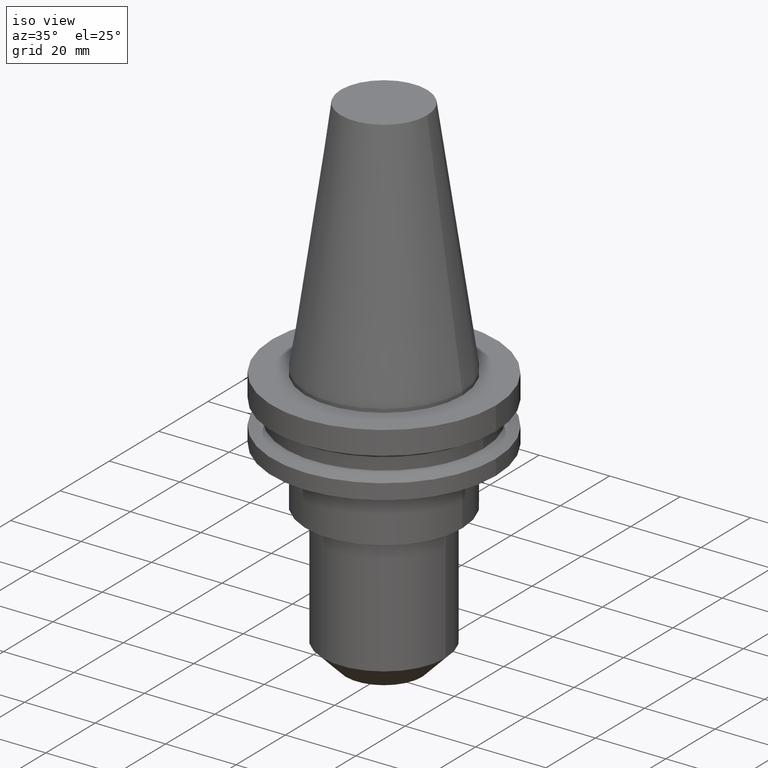
[diagram: clean part render]
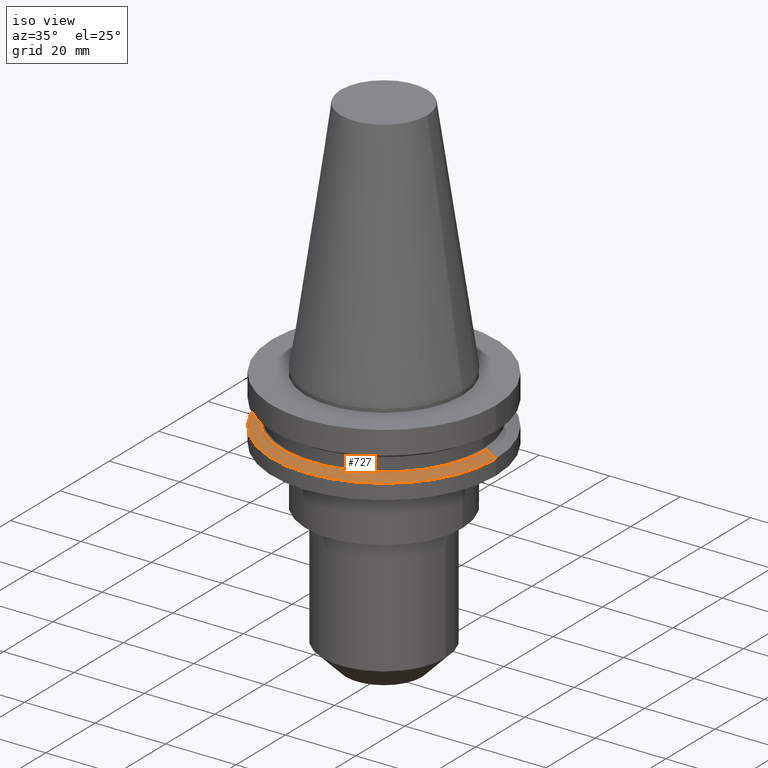
[diagram: same view with one face highlighted and labeled with its STEP entity id]
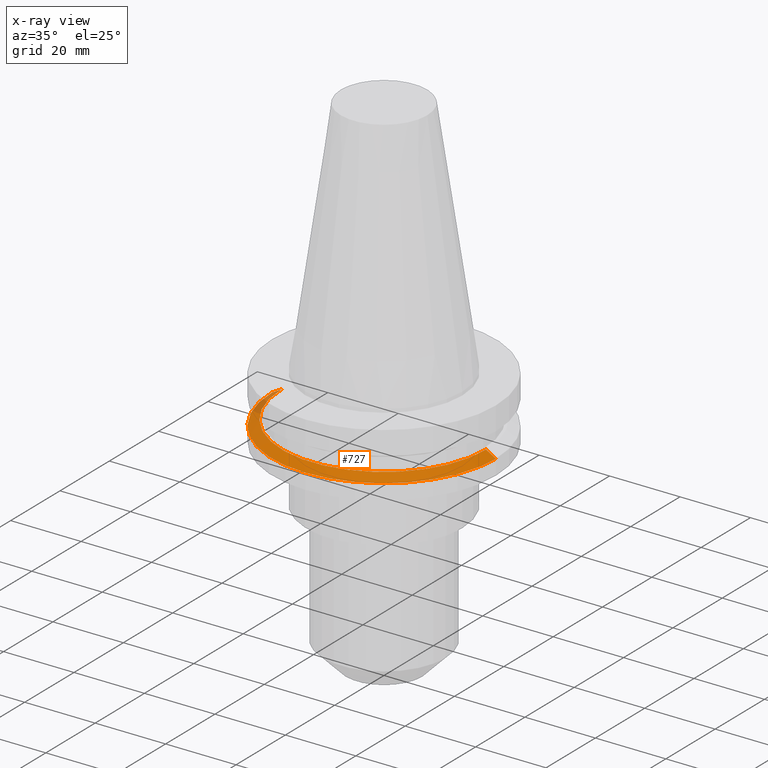
[diagram: x-ray of the same camera — body ghosted, the highlighted face saturated]
A machine part, iso view. The second image highlights one B-rep face of the part: STEP entity #727.
The next image is the same camera in x-ray: the body ghosted, the highlighted face saturated — about 4% of this face is hidden behind the body in this view.
In plain terms, the highlighted conical surface has half-angle 60 deg.
Its self-contained STEP definition (entity closure, byte-faithful):
#16 = VERTEX_POINT ( 'NONE', #205 ) ;
#30 = CONICAL_SURFACE ( 'NONE', #266, 31.75000000000000000, 1.047197551196597853 ) ;
#47 = CARTESIAN_POINT ( 'NONE',  ( 0.000000000000000000, 0.000000000000000000, -13.05499999999999794 ) ) ;
#52 = AXIS2_PLACEMENT_3D ( 'NONE', #574, #181, #242 ) ;
#89 = LINE ( 'NONE', #623, #422 ) ;
#104 = AXIS2_PLACEMENT_3D ( 'NONE', #47, #572, #173 ) ;
#105 = ORIENTED_EDGE ( 'NONE', *, *, #656, .T. ) ;
#173 = DIRECTION ( 'NONE',  ( 1.000000000000000000, 0.000000000000000000, 0.000000000000000000 ) ) ;
#178 = LINE ( 'NONE', #708, #428 ) ;
#181 = DIRECTION ( 'NONE',  ( -0.000000000000000000, -0.000000000000000000, 1.000000000000000000 ) ) ;
#182 = VERTEX_POINT ( 'NONE', #684 ) ;
#205 = CARTESIAN_POINT ( 'NONE',  ( -28.97919780457008088, 0.000000000000000000, -13.05499999999999794 ) ) ;
#217 = DIRECTION ( 'NONE',  ( 0.000000000000000000, 0.000000000000000000, -1.000000000000000000 ) ) ;
#242 = DIRECTION ( 'NONE',  ( 1.000000000000000000, 0.000000000000000000, 0.000000000000000000 ) ) ;
#266 = AXIS2_PLACEMENT_3D ( 'NONE', #628, #217, #492 ) ;
#284 = VERTEX_POINT ( 'NONE', #510 ) ;
#288 = DIRECTION ( 'NONE',  ( -0.8660254037844387076, 0.000000000000000000, -0.4999999999999998890 ) ) ;
#297 = VERTEX_POINT ( 'NONE', #314 ) ;
#314 = CARTESIAN_POINT ( 'NONE',  ( 31.75000000000000000, 0.000000000000000000, -14.65472339340266572 ) ) ;
#378 = EDGE_CURVE ( 'NONE', #182, #297, #178, .T. ) ;
#379 = CIRCLE ( 'NONE', #52, 31.75000000000000000 ) ;
#409 = EDGE_CURVE ( 'NONE', #284, #297, #379, .T. ) ;
#422 = VECTOR ( 'NONE', #288, 1000.000000000000000 ) ;
#428 = VECTOR ( 'NONE', #439, 1000.000000000000000 ) ;
#433 = ORIENTED_EDGE ( 'NONE', *, *, #844, .F. ) ;
#439 = DIRECTION ( 'NONE',  ( 0.8660254037844387076, 1.060575238724906915E-16, -0.4999999999999998890 ) ) ;
#492 = DIRECTION ( 'NONE',  ( -1.000000000000000000, 0.000000000000000000, 0.000000000000000000 ) ) ;
#510 = CARTESIAN_POINT ( 'NONE',  ( -31.75000000000000000, 3.888253587292846476E-15, -14.65472339340266572 ) ) ;
#572 = DIRECTION ( 'NONE',  ( -0.000000000000000000, -0.000000000000000000, 1.000000000000000000 ) ) ;
#574 = CARTESIAN_POINT ( 'NONE',  ( 0.000000000000000000, 0.000000000000000000, -14.65472339340266572 ) ) ;
#623 = CARTESIAN_POINT ( 'NONE',  ( -31.75000000000000000, 0.000000000000000000, -14.65472339340266572 ) ) ;
#628 = CARTESIAN_POINT ( 'NONE',  ( 0.000000000000000000, 0.000000000000000000, -14.65472339340266572 ) ) ;
#656 = EDGE_CURVE ( 'NONE', #16, #284, #89, .T. ) ;
#684 = CARTESIAN_POINT ( 'NONE',  ( 28.97919780457008088, 3.718590885307660666E-15, -13.05499999999999794 ) ) ;
#705 = EDGE_LOOP ( 'NONE', ( #769, #433, #105, #712 ) ) ;
#708 = CARTESIAN_POINT ( 'NONE',  ( 31.75000000000000000, 3.888253587292846476E-15, -14.65472339340266572 ) ) ;
#712 = ORIENTED_EDGE ( 'NONE', *, *, #409, .T. ) ;
#727 = ADVANCED_FACE ( 'NONE', ( #811 ), #30, .T. ) ;
#769 = ORIENTED_EDGE ( 'NONE', *, *, #378, .F. ) ;
#811 = FACE_OUTER_BOUND ( 'NONE', #705, .T. ) ;
#842 = CIRCLE ( 'NONE', #104, 28.97919780457008088 ) ;
#844 = EDGE_CURVE ( 'NONE', #16, #182, #842, .T. ) ;